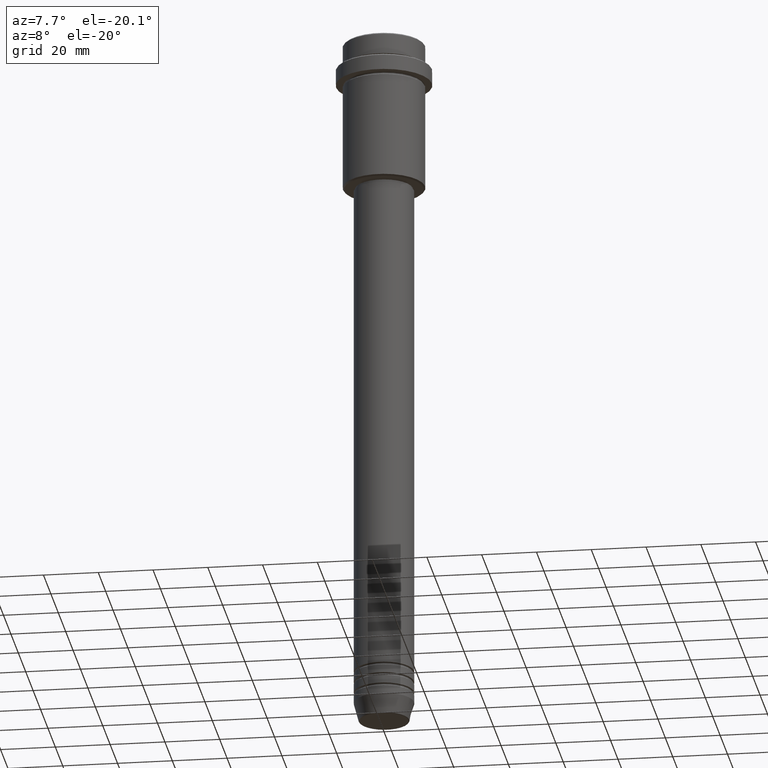
[diagram: clean part render]
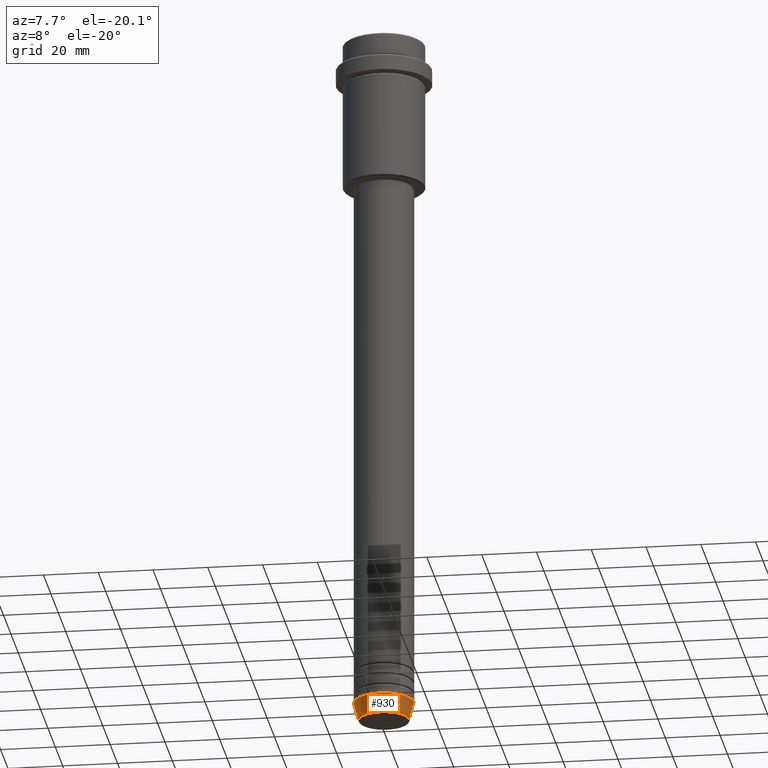
[diagram: same view with one face highlighted and labeled with its STEP entity id]
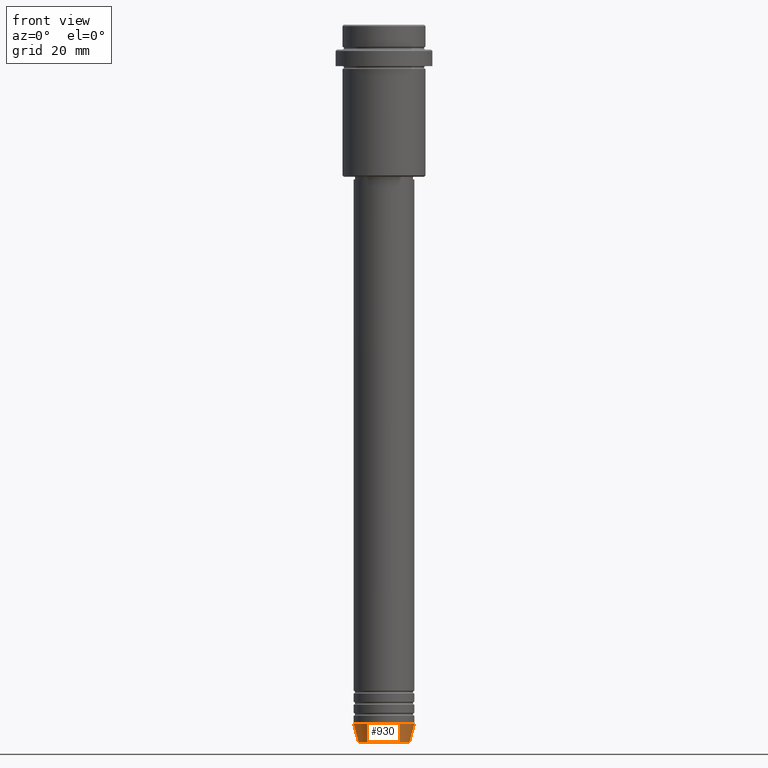
[diagram: same view with one face highlighted and labeled with its STEP entity id]
A machine part, auxiliary view. The second image highlights one B-rep face of the part: STEP entity #930.
A second angle (front view) of the same face is appended — the face is thin or edge-on in the first view.
In plain terms, the highlighted conical surface has half-angle 15 deg.
Its self-contained STEP definition (entity closure, byte-faithful):
#20 = VERTEX_POINT ( 'NONE', #465 ) ;
#123 = AXIS2_PLACEMENT_3D ( 'NONE', #706, #739, #1360 ) ;
#161 = EDGE_CURVE ( 'NONE', #20, #462, #1244, .T. ) ;
#167 = DIRECTION ( 'NONE',  ( 0.2588190451025213501, 0.000000000000000000, 0.9659258262890680902 ) ) ;
#179 = ORIENTED_EDGE ( 'NONE', *, *, #161, .T. ) ;
#213 = VECTOR ( 'NONE', #867, 1000.000000000000000 ) ;
#253 = FACE_OUTER_BOUND ( 'NONE', #485, .T. ) ;
#295 = ORIENTED_EDGE ( 'NONE', *, *, #697, .F. ) ;
#299 = ORIENTED_EDGE ( 'NONE', *, *, #745, .T. ) ;
#379 = VERTEX_POINT ( 'NONE', #803 ) ;
#421 = DIRECTION ( 'NONE',  ( 1.000000000000000000, 0.000000000000000000, 0.000000000000000000 ) ) ;
#429 = CIRCLE ( 'NONE', #1101, 11.00000000000000000 ) ;
#437 = LINE ( 'NONE', #561, #213 ) ;
#462 = VERTEX_POINT ( 'NONE', #1099 ) ;
#465 = CARTESIAN_POINT ( 'NONE',  ( 9.223655072137189492, 0.000000000000000000, -259.6294095225512706 ) ) ;
#485 = EDGE_LOOP ( 'NONE', ( #295, #299, #179, #902 ) ) ;
#516 = DIRECTION ( 'NONE',  ( -0.000000000000000000, -0.000000000000000000, 1.000000000000000000 ) ) ;
#561 = CARTESIAN_POINT ( 'NONE',  ( -11.00000000000000000, 1.347111479062088405E-15, -253.0000000000000000 ) ) ;
#689 = CIRCLE ( 'NONE', #861, 9.223655072137189492 ) ;
#697 = EDGE_CURVE ( 'NONE', #1376, #379, #437, .T. ) ;
#706 = CARTESIAN_POINT ( 'NONE',  ( 0.000000000000000000, 0.000000000000000000, -253.0000000000000000 ) ) ;
#739 = DIRECTION ( 'NONE',  ( -0.000000000000000000, -0.000000000000000000, 1.000000000000000000 ) ) ;
#745 = EDGE_CURVE ( 'NONE', #1376, #20, #689, .T. ) ;
#769 = DIRECTION ( 'NONE',  ( -0.000000000000000000, -0.000000000000000000, 1.000000000000000000 ) ) ;
#803 = CARTESIAN_POINT ( 'NONE',  ( -11.00000000000000000, 1.347111479062088405E-15, -253.0000000000000000 ) ) ;
#861 = AXIS2_PLACEMENT_3D ( 'NONE', #1177, #769, #421 ) ;
#867 = DIRECTION ( 'NONE',  ( -0.2588190451025213501, 3.169619151431772337E-17, 0.9659258262890680902 ) ) ;
#902 = ORIENTED_EDGE ( 'NONE', *, *, #1056, .F. ) ;
#930 = ADVANCED_FACE ( 'NONE', ( #253 ), #1406, .T. ) ;
#1024 = CARTESIAN_POINT ( 'NONE',  ( -9.223655072137189492, 1.238341722557647202E-15, -259.6294095225512706 ) ) ;
#1056 = EDGE_CURVE ( 'NONE', #379, #462, #429, .T. ) ;
#1074 = DIRECTION ( 'NONE',  ( 1.000000000000000000, 0.000000000000000000, 0.000000000000000000 ) ) ;
#1099 = CARTESIAN_POINT ( 'NONE',  ( 11.00000000000000000, 0.000000000000000000, -253.0000000000000000 ) ) ;
#1101 = AXIS2_PLACEMENT_3D ( 'NONE', #1368, #516, #1074 ) ;
#1141 = CARTESIAN_POINT ( 'NONE',  ( 11.00000000000000000, 0.000000000000000000, -253.0000000000000000 ) ) ;
#1177 = CARTESIAN_POINT ( 'NONE',  ( 0.000000000000000000, 0.000000000000000000, -259.6294095225512706 ) ) ;
#1244 = LINE ( 'NONE', #1141, #1378 ) ;
#1360 = DIRECTION ( 'NONE',  ( 1.000000000000000000, 0.000000000000000000, 0.000000000000000000 ) ) ;
#1368 = CARTESIAN_POINT ( 'NONE',  ( 0.000000000000000000, 0.000000000000000000, -253.0000000000000000 ) ) ;
#1376 = VERTEX_POINT ( 'NONE', #1024 ) ;
#1378 = VECTOR ( 'NONE', #167, 1000.000000000000000 ) ;
#1406 = CONICAL_SURFACE ( 'NONE', #123, 11.00000000000000000, 0.2617993877991500740 ) ;